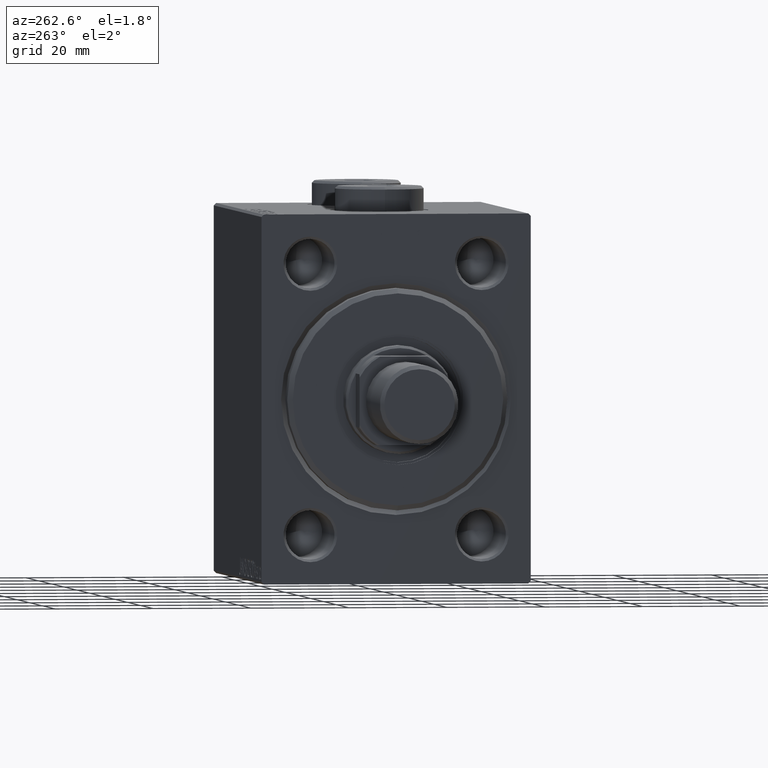
[diagram: clean part render]
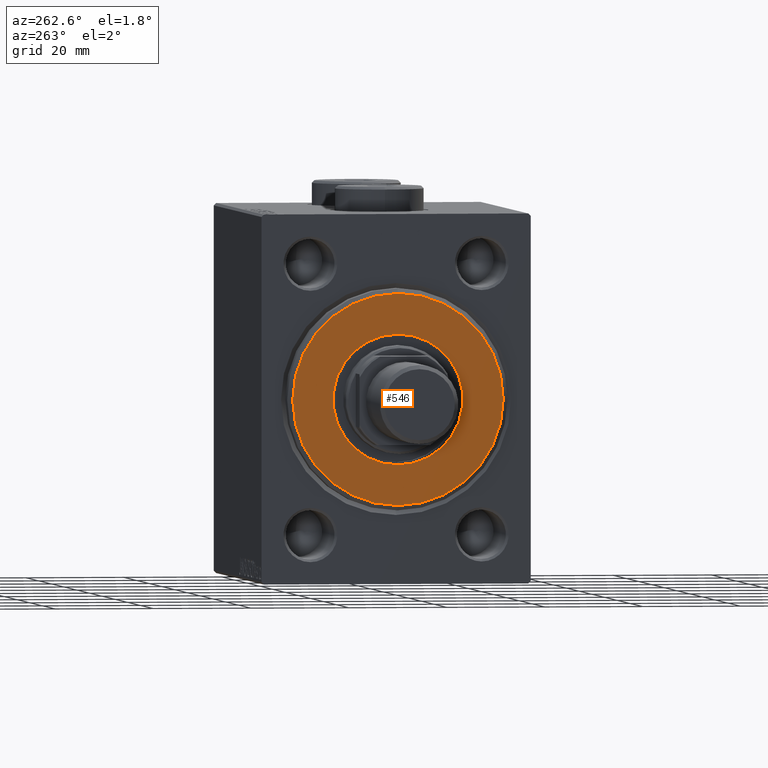
[diagram: same view with one face highlighted and labeled with its STEP entity id]
A machine part, auxiliary view. The second image highlights one B-rep face of the part: STEP entity #546.
In plain terms, the highlighted planar face has unit normal (-1, 0, 0).
Its self-contained STEP definition (entity closure, byte-faithful):
#546 = ADVANCED_FACE ( 'NONE', ( #44655, #12749 ), #33294, .T. ) ;
#744 = AXIS2_PLACEMENT_3D ( 'NONE', #26991, #26536, #37008 ) ;
#1120 = AXIS2_PLACEMENT_3D ( 'NONE', #41444, #9549, #34250 ) ;
#1269 = EDGE_CURVE ( 'NONE', #40730, #31748, #3697, .T. ) ;
#2151 = EDGE_CURVE ( 'NONE', #22798, #6604, #24487, .T. ) ;
#2881 = DIRECTION ( 'NONE',  ( 1.000000000000000000, -0.000000000000000000, 0.000000000000000000 ) ) ;
#3697 = CIRCLE ( 'NONE', #43836, 21.50000000000000355 ) ;
#4551 = ORIENTED_EDGE ( 'NONE', *, *, #1269, .T. ) ;
#4990 = CARTESIAN_POINT ( 'NONE',  ( 3.000000000000000000, 1.622657008870243277E-15, 13.25000000000000178 ) ) ;
#6599 = AXIS2_PLACEMENT_3D ( 'NONE', #30247, #40937, #15569 ) ;
#6604 = VERTEX_POINT ( 'NONE', #36936 ) ;
#6813 = ORIENTED_EDGE ( 'NONE', *, *, #21941, .F. ) ;
#7454 = AXIS2_PLACEMENT_3D ( 'NONE', #27017, #37716, #16511 ) ;
#9549 = DIRECTION ( 'NONE',  ( 1.000000000000000000, -0.000000000000000000, 0.000000000000000000 ) ) ;
#12749 = FACE_BOUND ( 'NONE', #14151, .T. ) ;
#14151 = EDGE_LOOP ( 'NONE', ( #6813, #34386 ) ) ;
#14479 = CIRCLE ( 'NONE', #1120, 21.50000000000000355 ) ;
#14632 = ORIENTED_EDGE ( 'NONE', *, *, #37388, .T. ) ;
#15569 = DIRECTION ( 'NONE',  ( 0.000000000000000000, 0.000000000000000000, -1.000000000000000000 ) ) ;
#15613 = CIRCLE ( 'NONE', #7454, 13.25000000000000178 ) ;
#16511 = DIRECTION ( 'NONE',  ( 0.000000000000000000, 0.000000000000000000, -1.000000000000000000 ) ) ;
#21941 = EDGE_CURVE ( 'NONE', #6604, #22798, #15613, .T. ) ;
#22798 = VERTEX_POINT ( 'NONE', #4990 ) ;
#24487 = CIRCLE ( 'NONE', #744, 13.25000000000000178 ) ;
#26536 = DIRECTION ( 'NONE',  ( 1.000000000000000000, 0.000000000000000000, 0.000000000000000000 ) ) ;
#26991 = CARTESIAN_POINT ( 'NONE',  ( 3.000000000000000000, 0.000000000000000000, 0.000000000000000000 ) ) ;
#27017 = CARTESIAN_POINT ( 'NONE',  ( 3.000000000000000000, 0.000000000000000000, 0.000000000000000000 ) ) ;
#27292 = CARTESIAN_POINT ( 'NONE',  ( 3.000000000000000000, 2.694222958124177598E-15, -21.50000000000000355 ) ) ;
#27785 = DIRECTION ( 'NONE',  ( 0.000000000000000000, 0.000000000000000000, -1.000000000000000000 ) ) ;
#30247 = CARTESIAN_POINT ( 'NONE',  ( 3.000000000000000000, 0.000000000000000000, 0.000000000000000000 ) ) ;
#31748 = VERTEX_POINT ( 'NONE', #32500 ) ;
#32500 = CARTESIAN_POINT ( 'NONE',  ( 3.000000000000000000, 0.000000000000000000, 21.50000000000000355 ) ) ;
#33294 = PLANE ( 'NONE',  #6599 ) ;
#34250 = DIRECTION ( 'NONE',  ( 0.000000000000000000, 0.000000000000000000, -1.000000000000000000 ) ) ;
#34386 = ORIENTED_EDGE ( 'NONE', *, *, #2151, .F. ) ;
#34777 = CARTESIAN_POINT ( 'NONE',  ( 3.000000000000000000, 0.000000000000000000, 0.000000000000000000 ) ) ;
#36936 = CARTESIAN_POINT ( 'NONE',  ( 3.000000000000000000, 0.000000000000000000, -13.25000000000000178 ) ) ;
#37008 = DIRECTION ( 'NONE',  ( 0.000000000000000000, 0.000000000000000000, -1.000000000000000000 ) ) ;
#37388 = EDGE_CURVE ( 'NONE', #31748, #40730, #14479, .T. ) ;
#37716 = DIRECTION ( 'NONE',  ( 1.000000000000000000, 0.000000000000000000, 0.000000000000000000 ) ) ;
#39924 = EDGE_LOOP ( 'NONE', ( #14632, #4551 ) ) ;
#40730 = VERTEX_POINT ( 'NONE', #27292 ) ;
#40937 = DIRECTION ( 'NONE',  ( 1.000000000000000000, -0.000000000000000000, 0.000000000000000000 ) ) ;
#41444 = CARTESIAN_POINT ( 'NONE',  ( 3.000000000000000000, 0.000000000000000000, 0.000000000000000000 ) ) ;
#43836 = AXIS2_PLACEMENT_3D ( 'NONE', #34777, #2881, #27785 ) ;
#44655 = FACE_OUTER_BOUND ( 'NONE', #39924, .T. ) ;